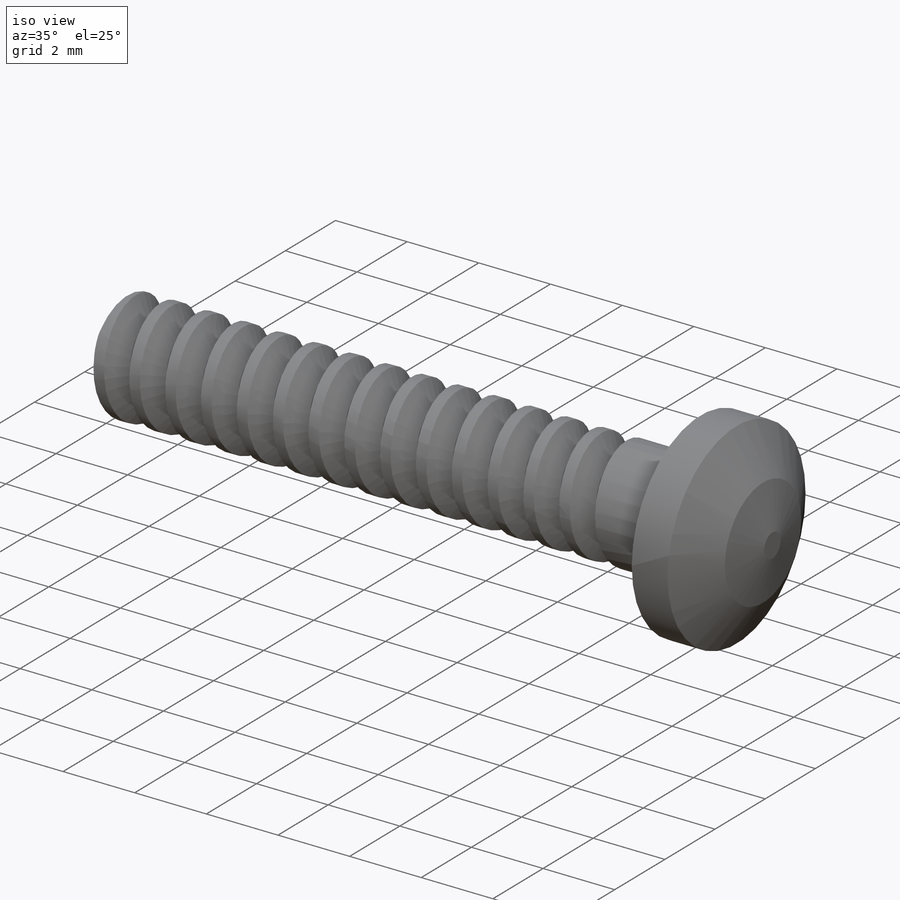
[diagram: iso view]
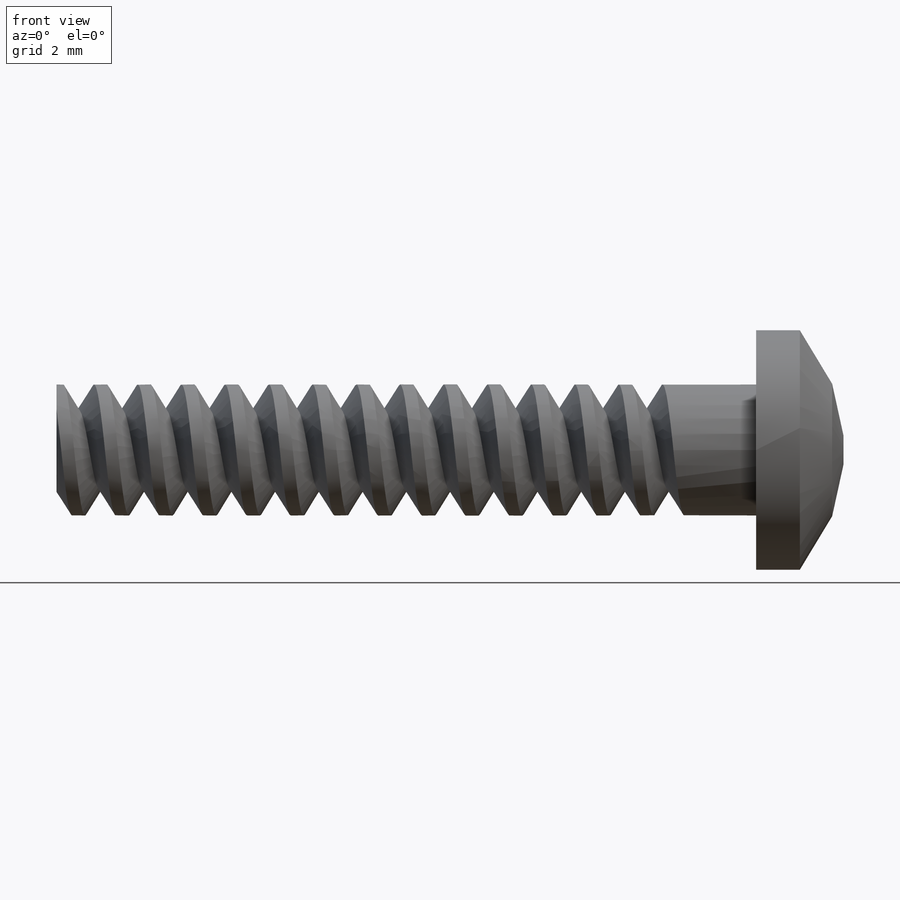
[diagram: front view]
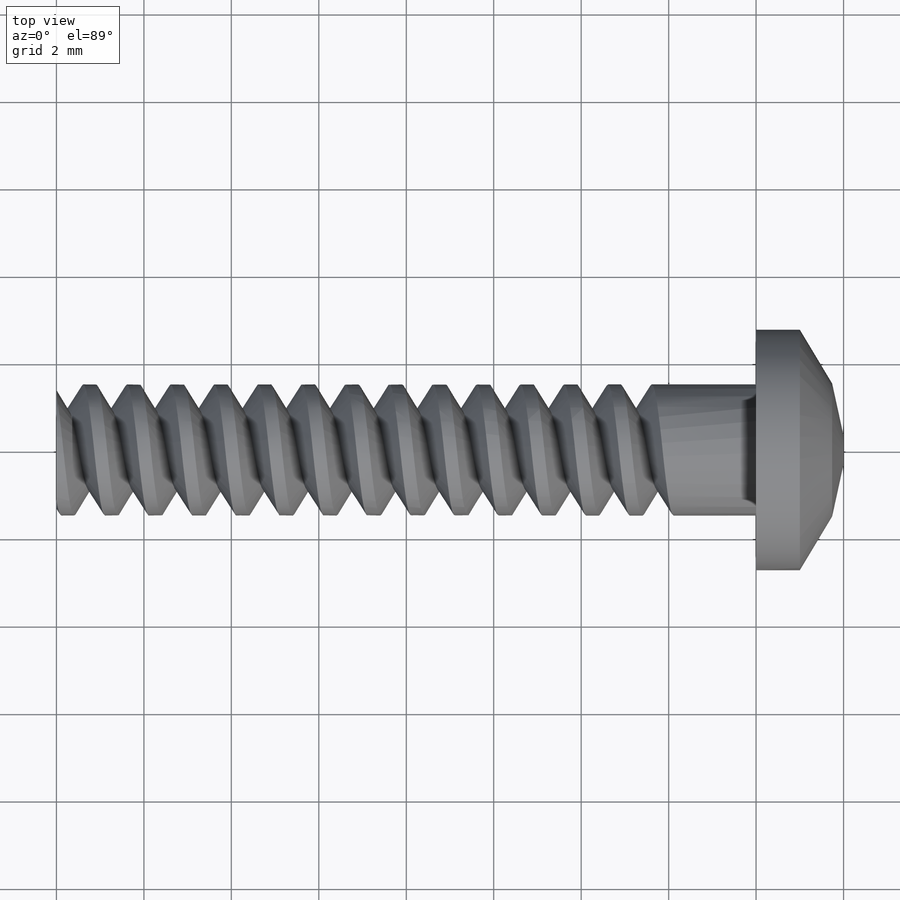
[diagram: top view]
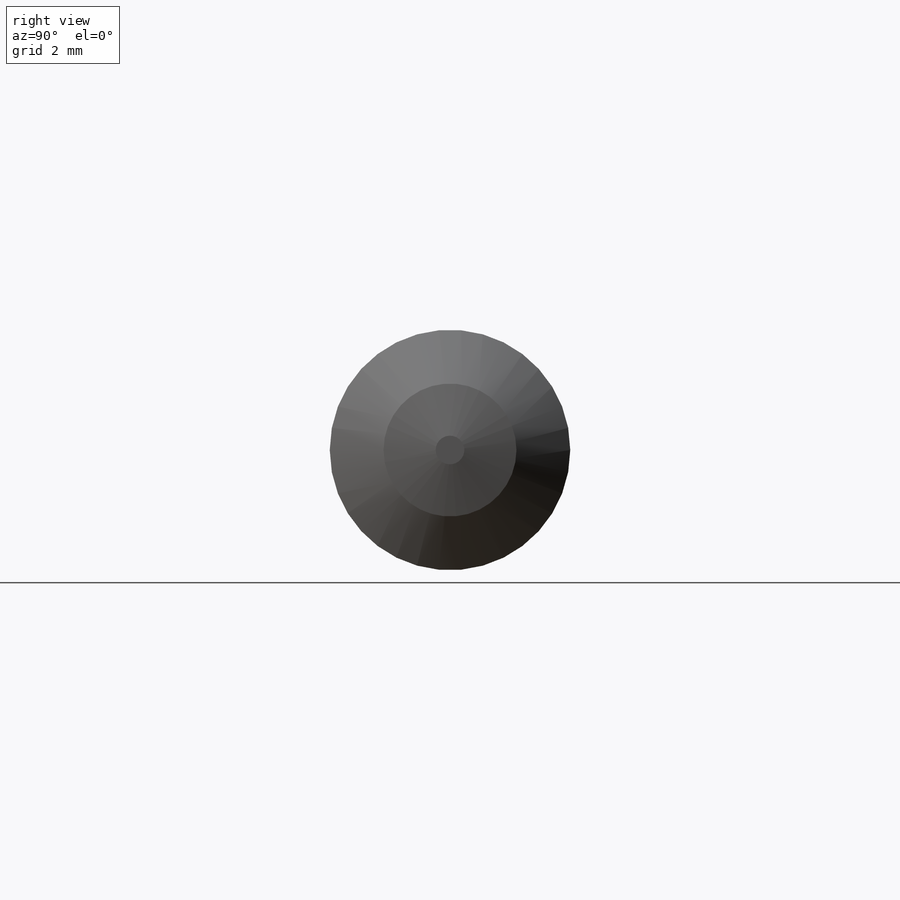
[diagram: right view]
SOLIDWORKS PART (.sldprt)
format: sldprt  version: not decoded by parser v0  size: 444,928 bytes
history: native  units: mm
features: sketch x5, plane x3, extrude x2, material x1, cut_revolve x1, helix x1, sweep x1 (+9 scaffold rows collapsed)
feature tree (23):
  scaffold x9  (default folders/planes/origin — collapsed)
  material  "材质 <未指定>"
  plane  "前视基准面"
  plane  "上视基准面"
  plane  "右视基准面"
  sketch  "草图1"  dims[D1=3.0mm]
  extrude  "凸台-拉伸1"  Depth=16mm
  sketch  "草图2"  dims[D1=5.5mm]
  extrude  "凸台-拉伸2"  Depth=2mm
  sketch  "草图3"  dims[D1=5.0mm D2=5.0mm]
  cut_revolve  "切除-旋转7"  Angle=360deg
  sketch  "草图4"
  sketch  "草图5"
  helix  "螺旋线/涡状线1"  Pitch=15mm
  sweep  "切除-扫描1"
decode coverage: 7 of 10 modeling features carry decoded parameters
note: suppression state not decoded; provenance and decode notes live in map.json
